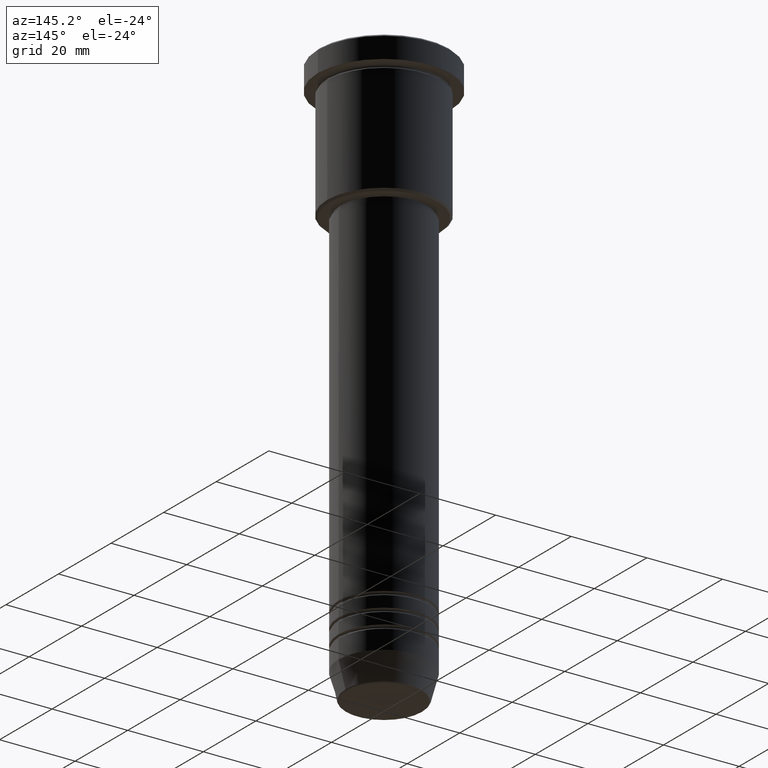
[diagram: clean part render]
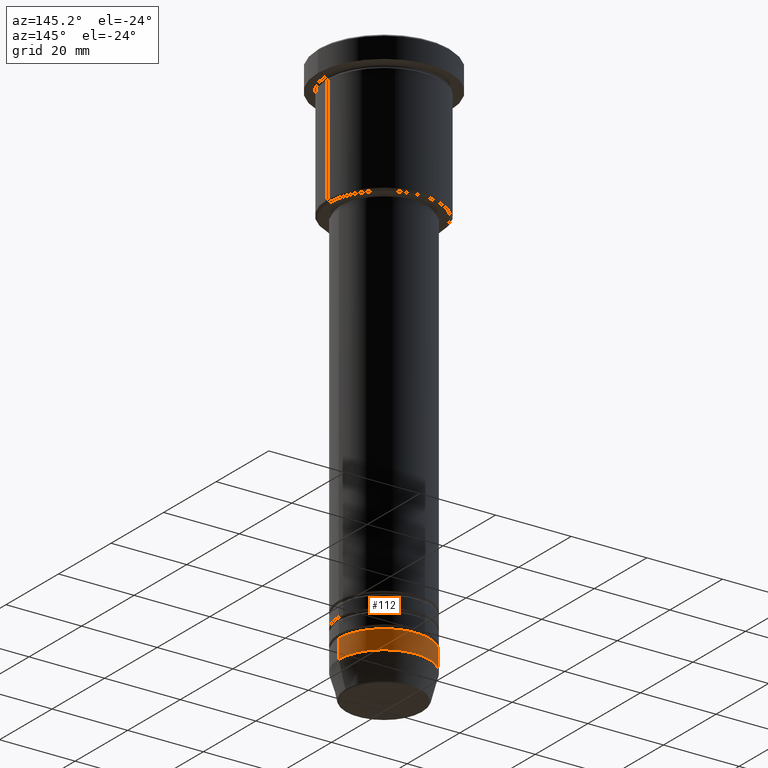
[diagram: same view with one face highlighted and labeled with its STEP entity id]
A machine part, auxiliary view. The second image highlights one B-rep face of the part: STEP entity #112.
In plain terms, the highlighted cylindrical surface (partial cylindrical patch) has radius 12 mm, axis along (-0, -0, 1).
Its self-contained STEP definition (entity closure, byte-faithful):
#1 = ORIENTED_EDGE ( 'NONE', *, *, #25, .T. ) ;
#20 = VERTEX_POINT ( 'NONE', #109 ) ;
#25 = EDGE_CURVE ( 'NONE', #316, #20, #1154, .T. ) ;
#30 = CARTESIAN_POINT ( 'NONE',  ( 12.00000000000000000, 0.000000000000000000, 0.000000000000000000 ) ) ;
#36 = LINE ( 'NONE', #30, #449 ) ;
#70 = CARTESIAN_POINT ( 'NONE',  ( -12.00000000000000000, 1.469576158976823947E-15, -139.0000000000000000 ) ) ;
#79 = VERTEX_POINT ( 'NONE', #895 ) ;
#87 = FACE_OUTER_BOUND ( 'NONE', #1160, .T. ) ;
#109 = CARTESIAN_POINT ( 'NONE',  ( -12.00000000000000000, 1.469576158976823947E-15, -144.0000000000000284 ) ) ;
#112 = ADVANCED_FACE ( 'NONE', ( #87 ), #179, .T. ) ;
#179 = CYLINDRICAL_SURFACE ( 'NONE', #280, 12.00000000000000000 ) ;
#235 = DIRECTION ( 'NONE',  ( -0.000000000000000000, -0.000000000000000000, 1.000000000000000000 ) ) ;
#261 = AXIS2_PLACEMENT_3D ( 'NONE', #1111, #298, #545 ) ;
#280 = AXIS2_PLACEMENT_3D ( 'NONE', #1088, #996, #456 ) ;
#284 = EDGE_CURVE ( 'NONE', #20, #954, #317, .T. ) ;
#298 = DIRECTION ( 'NONE',  ( -0.000000000000000000, -0.000000000000000000, 1.000000000000000000 ) ) ;
#316 = VERTEX_POINT ( 'NONE', #948 ) ;
#317 = LINE ( 'NONE', #400, #883 ) ;
#400 = CARTESIAN_POINT ( 'NONE',  ( -12.00000000000000000, 1.469576158976823947E-15, 0.000000000000000000 ) ) ;
#449 = VECTOR ( 'NONE', #934, 1000.000000000000000 ) ;
#456 = DIRECTION ( 'NONE',  ( 1.000000000000000000, 0.000000000000000000, 0.000000000000000000 ) ) ;
#462 = CARTESIAN_POINT ( 'NONE',  ( 0.000000000000000000, 0.000000000000000000, -139.0000000000000000 ) ) ;
#545 = DIRECTION ( 'NONE',  ( 1.000000000000000000, 0.000000000000000000, 0.000000000000000000 ) ) ;
#553 = ORIENTED_EDGE ( 'NONE', *, *, #284, .T. ) ;
#757 = AXIS2_PLACEMENT_3D ( 'NONE', #462, #826, #928 ) ;
#784 = EDGE_CURVE ( 'NONE', #316, #79, #36, .T. ) ;
#810 = CIRCLE ( 'NONE', #757, 12.00000000000000000 ) ;
#826 = DIRECTION ( 'NONE',  ( -0.000000000000000000, -0.000000000000000000, 1.000000000000000000 ) ) ;
#861 = ORIENTED_EDGE ( 'NONE', *, *, #784, .F. ) ;
#883 = VECTOR ( 'NONE', #235, 1000.000000000000000 ) ;
#895 = CARTESIAN_POINT ( 'NONE',  ( 12.00000000000000000, 0.000000000000000000, -139.0000000000000000 ) ) ;
#928 = DIRECTION ( 'NONE',  ( 1.000000000000000000, 0.000000000000000000, 0.000000000000000000 ) ) ;
#934 = DIRECTION ( 'NONE',  ( -0.000000000000000000, -0.000000000000000000, 1.000000000000000000 ) ) ;
#948 = CARTESIAN_POINT ( 'NONE',  ( 12.00000000000000000, 0.000000000000000000, -144.0000000000000284 ) ) ;
#954 = VERTEX_POINT ( 'NONE', #70 ) ;
#980 = ORIENTED_EDGE ( 'NONE', *, *, #1126, .F. ) ;
#996 = DIRECTION ( 'NONE',  ( -0.000000000000000000, -0.000000000000000000, 1.000000000000000000 ) ) ;
#1088 = CARTESIAN_POINT ( 'NONE',  ( 0.000000000000000000, 0.000000000000000000, 0.000000000000000000 ) ) ;
#1111 = CARTESIAN_POINT ( 'NONE',  ( 0.000000000000000000, 0.000000000000000000, -144.0000000000000284 ) ) ;
#1126 = EDGE_CURVE ( 'NONE', #79, #954, #810, .T. ) ;
#1154 = CIRCLE ( 'NONE', #261, 12.00000000000000000 ) ;
#1160 = EDGE_LOOP ( 'NONE', ( #1, #553, #980, #861 ) ) ;